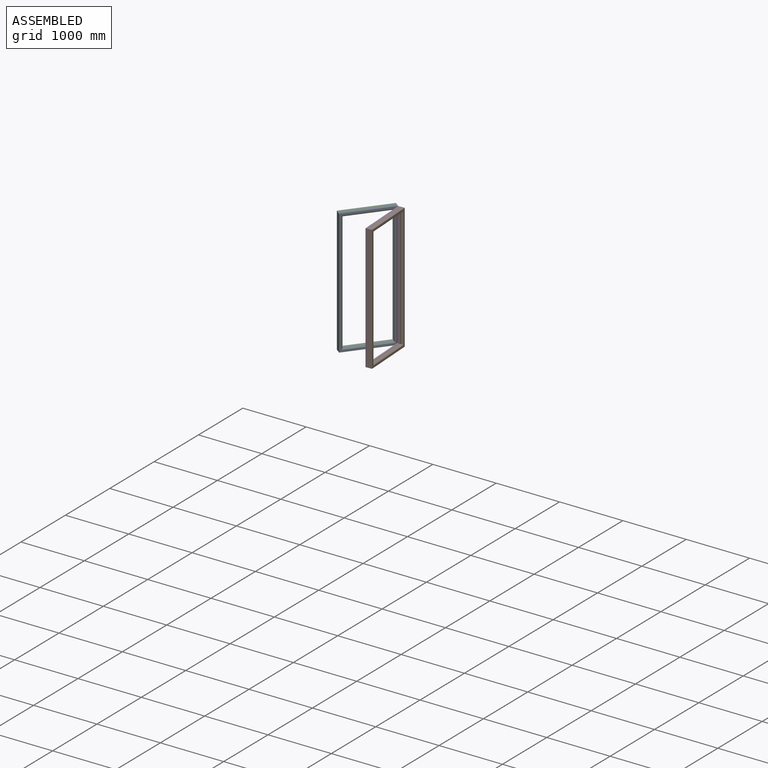
[diagram: assembled view]
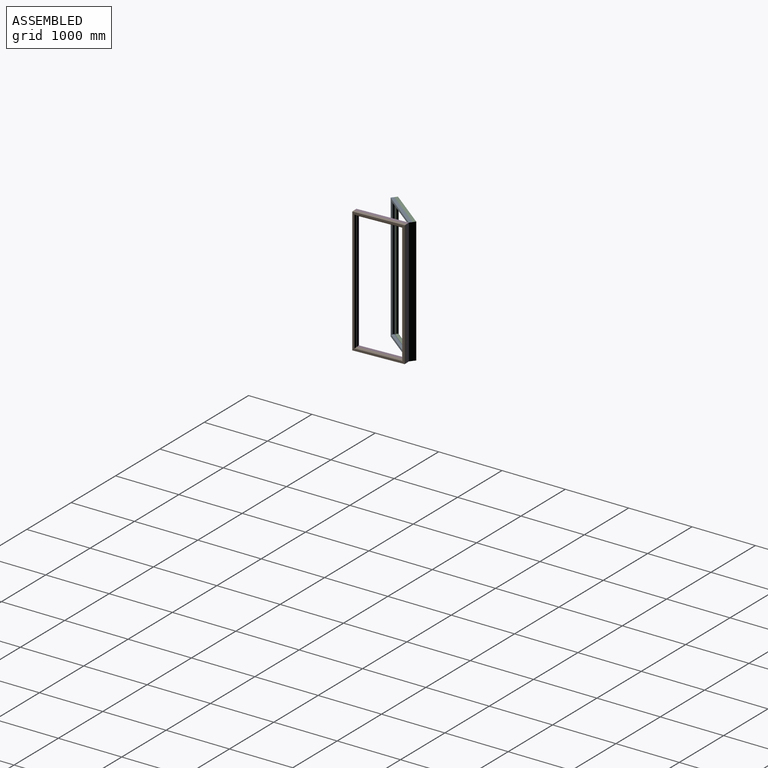
[diagram: assembled view, second angle]
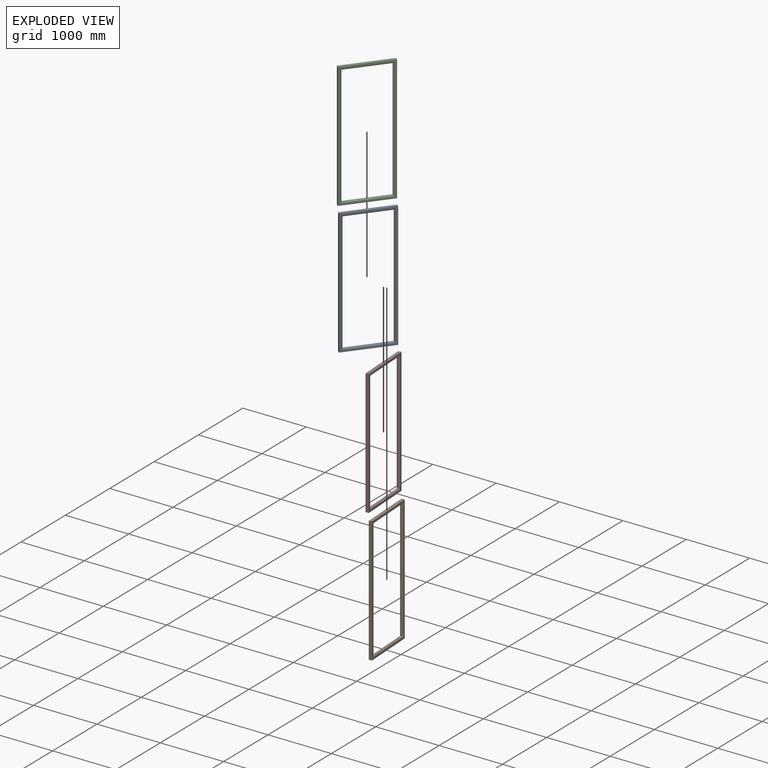
[diagram: exploded view]
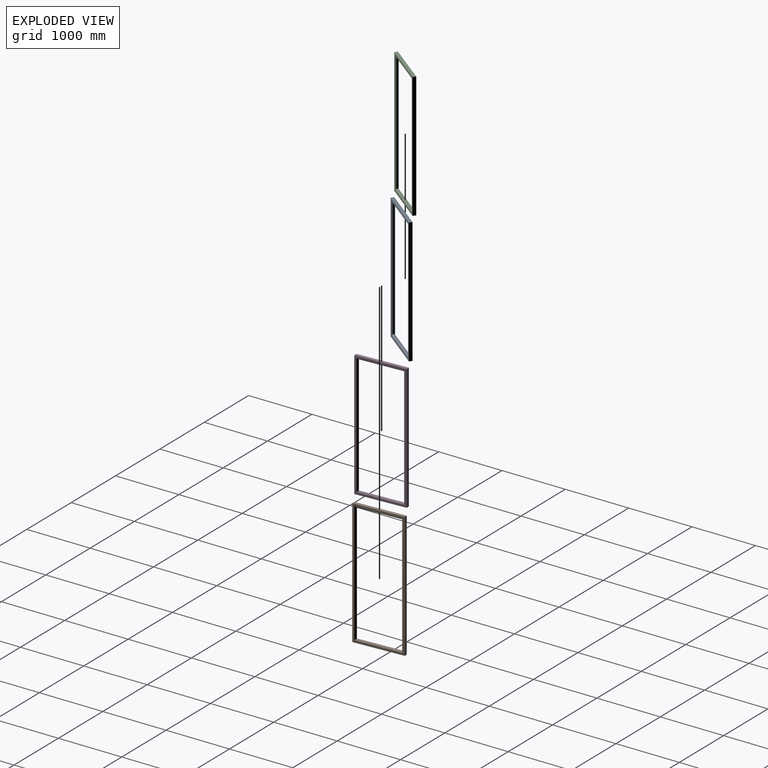
[diagram: exploded view, second angle]
ASSEMBLY  parts=4 mates=3
PART A: 18 faces, bbox 800x50x1981 mm
  f0: plane 700x20mm, normal (0,0,-1), area 14000mm2, adj f1,f7,f10,f14
  f1: plane 1881x20mm, normal (1,0,0), area 37620mm2, adj f0,f2,f11,f15
  f2: plane 700x20mm, normal (0,0,1), area 14000mm2, adj f1,f7,f13,f17
  f3: plane 1981x50mm, normal (-1,0,0), area 99050mm2, adj f4,f6,f8,f9
  f4: plane 800x50mm, normal (0,0,1), area 40000mm2, adj f3,f5,f8,f9
  f5: plane 1981x50mm, normal (1,0,0), area 99050mm2, adj f4,f6,f8,f9
  f6: plane 800x50mm, normal (0,0,-1), area 40000mm2, adj f3,f5,f8,f9
  f7: plane 1881x20mm, normal (-1,0,0), area 37620mm2, adj f0,f2,f12,f16
  f8: plane 1981x800mm, normal (0,1,0), area 189770mm2, adj f3,f4,f5,f6,f14,f15,f16,f17
  f9: plane 1981x800mm, normal (0,-1,0), area 189770mm2, adj f3,f4,f5,f6,f10,f11,f12,f13
  f10: plane 730x15mm, normal (0,-0.71,-0.71), area 15167.4mm2, adj f0,f9,f11,f12
  f11: plane 1911x15mm, normal (0.71,-0.71,0), area 40220.2mm2, adj f1,f9,f10,f13
  f12: plane 1911x15mm, normal (-0.71,-0.71,0), area 40220.2mm2, adj f7,f9,f10,f13
  f13: plane 730x15mm, normal (0,-0.71,0.71), area 15167.4mm2, adj f2,f9,f11,f12
  f14: plane 730x15mm, normal (0,0.71,-0.71), area 15167.4mm2, adj f0,f8,f15,f16
  f15: plane 1911x15mm, normal (0.71,0.71,0), area 40220.2mm2, adj f1,f8,f14,f17
  f16: plane 1911x15mm, normal (-0.71,0.71,0), area 40220.2mm2, adj f7,f8,f14,f17
  f17: plane 730x15mm, normal (0,0.71,0.71), area 15167.4mm2, adj f2,f8,f15,f16
PART B: same geometry as A
PART C: same geometry as A
PART D: same geometry as A
PLACE A rot(axis=(0,0,-1),127.8deg) t=(-2209.79,-2788.92,-1755.92)mm
PLACE B rot(axis=(0,0,-1),86.9deg) t=(-1319.93,-3067.32,-1755.92)mm
PLACE C rot(axis=(0,0,1),52.2deg) t=(-1228.55,-1525.13,-1755.92)mm
PLACE D rot(axis=(0,0,1),93.1deg) t=(-1405.94,-1469.63,-1755.92)mm
MATE revolute D.f4 <-> B.f4  axis (0,0,1) through (-1341.43,-2667.9,-765.42)mm
MATE revolute C.f4 <-> A.f4  axis (0,0,1) through (-1964.48,-2472.97,-765.42)mm
MATE revolute A.f4 <-> D.f4  axis (0,0,1) through (-1434.37,-1871.74,-765.42)mm
